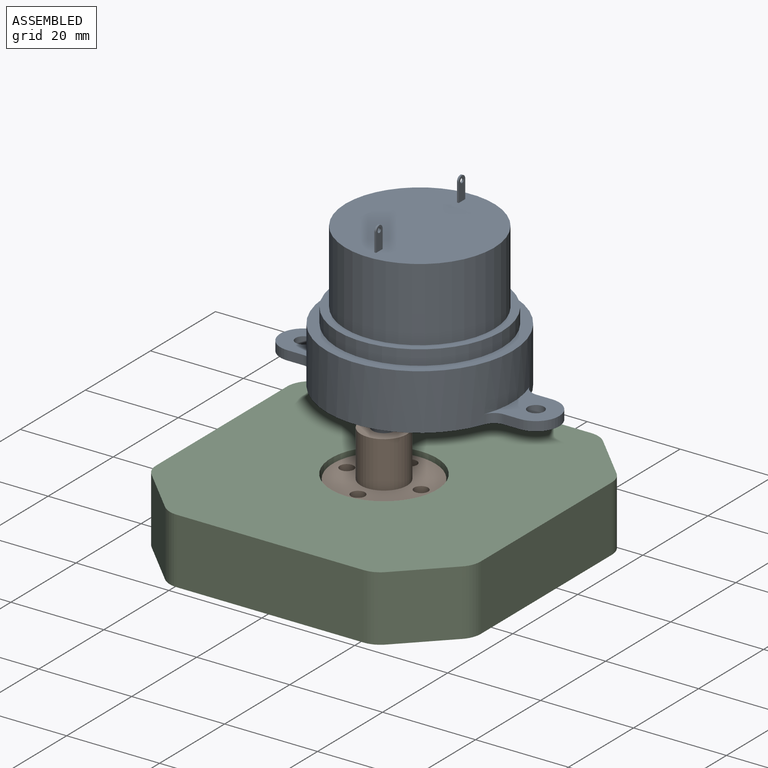
[diagram: assembled view]
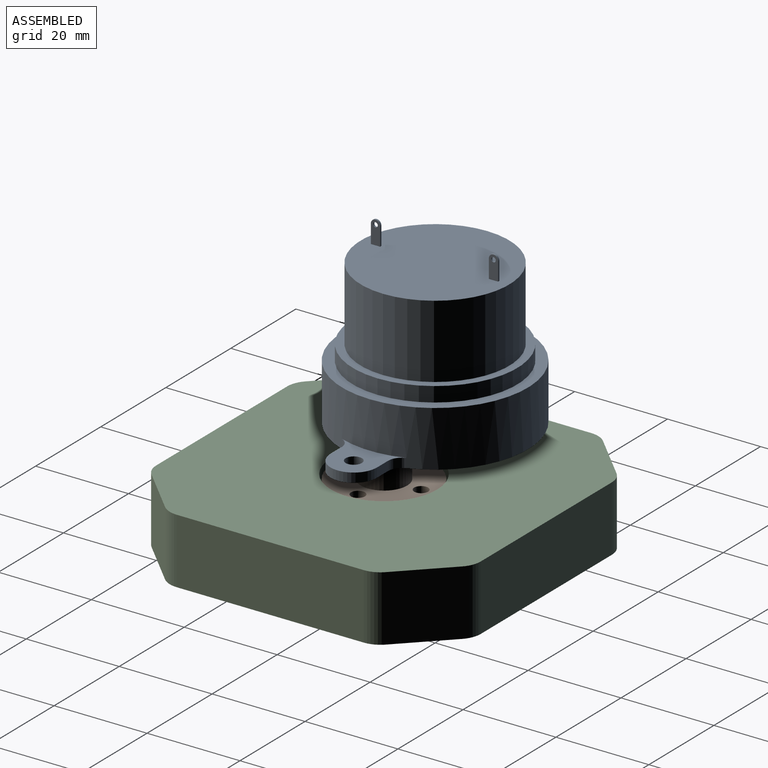
[diagram: assembled view, second angle]
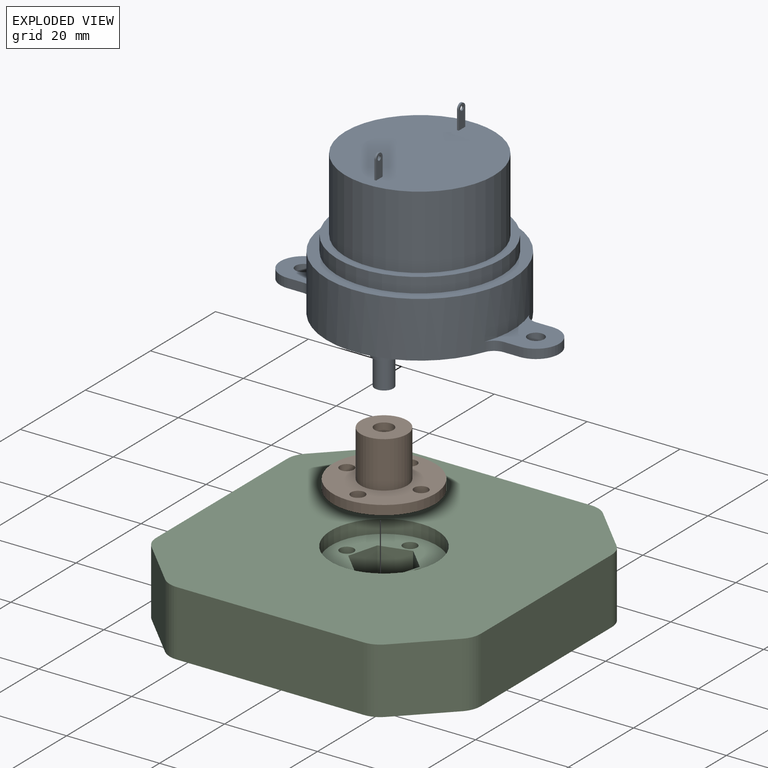
[diagram: exploded view]
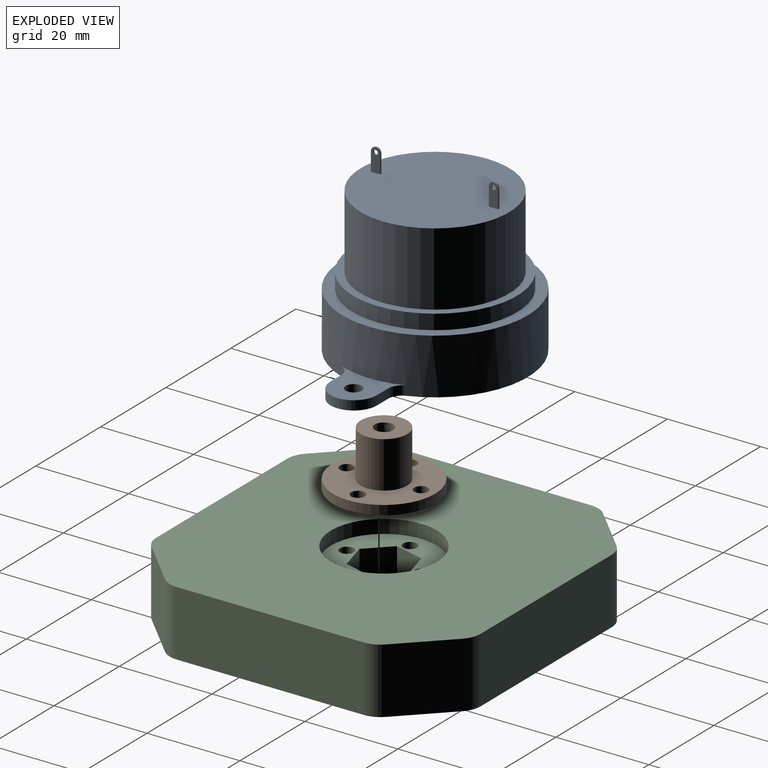
[diagram: exploded view, second angle]
ASSEMBLY  parts=3 mates=4
PART A: 39 faces, bbox 60x40x46 mm
  f0: plane 32x32mm, normal (0,0,1), area 802.7mm2, adj f20,f28,f30,f31,f32,f34,f36,f37
  f1: cylinder r=20mm len=40mm, axis (0,0,-1), area 1451.1mm2, adj f2,f3,f8,f13,f14,f15,f16,f17
  f2: plane 40x40mm, normal (0,0,1), area 272.4mm2, adj f1,f18
  f3: plane 60x40mm, normal (0,0,-1), area 1373.3mm2, adj f1,f4,f5,f6,f7,f9,f10,f11
  f4: plane 3.44x2mm, normal (0,1,0), area 6.9mm2, adj f3,f5,f8,f16
  f5: cylinder r=5mm len=10mm, axis (0,0,-1), area 31.4mm2, adj f3,f4,f6,f8
  f6: plane 3.44x2mm, normal (0,-1,0), area 6.9mm2, adj f3,f5,f8,f17
  f7: cylinder r=1.75mm len=3.5mm, axis (0,0,-1), area 22mm2, adj f3,f8
  f8: plane 13.91x11.25mm, normal (0,0,1), area 83.5mm2, adj f1,f4,f5,f6,f7,f16,f17
  f9: cylinder r=5mm len=10mm, axis (0,0,-1), area 31.4mm2, adj f3,f10,f12,f13
  f10: plane 3.44x2mm, normal (0,1,0), area 6.9mm2, adj f3,f9,f13,f14
  f11: cylinder r=1.75mm len=3.5mm, axis (0,0,-1), area 22mm2, adj f3,f13
  f12: plane 3.44x2mm, normal (0,-1,0), area 6.9mm2, adj f3,f9,f13,f15
  f13: plane 13.91x11.25mm, normal (0,0,1), area 83.5mm2, adj f1,f9,f10,f11,f12,f14,f15
  f14: cylinder r=3mm len=2.81mm, axis (0,0,-1), area 7.3mm2, adj f1,f3,f10,f13
  f15: cylinder r=3mm len=2.81mm, axis (0,0,-1), area 7.3mm2, adj f1,f3,f12,f13
  f16: cylinder r=3mm len=2.81mm, axis (0,0,-1), area 7.3mm2, adj f1,f3,f4,f8
  f17: cylinder r=3mm len=2.81mm, axis (0,0,-1), area 7.3mm2, adj f1,f3,f6,f8
  f18: cylinder r=17.7mm len=35.4mm, axis (0,0,-1), area 355.9mm2, adj f2,f19
  f19: plane 35.4x35.4mm, normal (0,0,1), area 180mm2, adj f18,f20
  f20: cylinder r=16mm len=32mm, axis (0,0,-1), area 1588.4mm2, adj f0,f19
  f21: cylinder r=4mm len=8mm, axis (0,0,1), area 50.3mm2, adj f3,f22
  f22: plane 8x8mm, normal (0,0,-1), area 30.6mm2, adj f21,f26
  f23: plane 4x4mm, normal (0,0,-1), area 12.6mm2, adj f24
  f24: cylinder r=2mm len=6mm, axis (0,0,1), area 75.4mm2, adj f23,f25
  f25: plane 5x5mm, normal (0,0,-1), area 7.1mm2, adj f24,f26
  f26: cylinder r=2.5mm len=5mm, axis (0,0,1), area 31.4mm2, adj f22,f25
  f27: cylinder r=1mm len=2mm, axis (-1,0,0), area 1.2mm2, adj f28,f30,f31,f32
  f28: plane 4x0.38mm, normal (0,-1,0), area 1.5mm2, adj f0,f27,f31,f32
  f29: cylinder r=0.5mm len=1mm, axis (-1,0,0), area 1.2mm2, adj f31,f32
  f30: plane 4x0.38mm, normal (0,1,0), area 1.5mm2, adj f0,f27,f31,f32
  f31: plane 5x2mm, normal (1,0,0), area 8.8mm2, adj f0,f27,f28,f29,f30
  f32: plane 5x2mm, normal (-1,0,0), area 8.8mm2, adj f0,f27,f28,f29,f30
  f33: cylinder r=1mm len=2mm, axis (-1,0,0), area 1.2mm2, adj f34,f36,f37,f38
  f34: plane 4x0.38mm, normal (0,-1,0), area 1.5mm2, adj f0,f33,f37,f38
  f35: cylinder r=0.5mm len=1mm, axis (-1,0,0), area 1.2mm2, adj f37,f38
  f36: plane 4x0.38mm, normal (0,1,0), area 1.5mm2, adj f0,f33,f37,f38
  f37: plane 5x2mm, normal (1,0,0), area 8.8mm2, adj f0,f33,f34,f35,f36
  f38: plane 5x2mm, normal (-1,0,0), area 8.8mm2, adj f0,f33,f34,f35,f36
PART B: 11 faces, bbox 22x22x12 mm
  f0: cylinder r=2mm len=12mm, axis (0,0,-1), area 143.1mm2, adj f2,f3,f10
  f1: cylinder r=5mm len=10mm, axis (0,0,-1), area 307mm2, adj f2,f9,f10
  f2: plane 10x10mm, normal (0,0,1), area 66mm2, adj f0,f1
  f3: plane 22x22mm, normal (0,0,-1), area 339.3mm2, adj f0,f4,f5,f6,f7,f8
  f4: cylinder r=1.5mm len=3mm, axis (0,0,-1), area 18.8mm2, adj f3,f9
  f5: cylinder r=1.5mm len=3mm, axis (0,0,-1), area 18.8mm2, adj f3,f9
  f6: cylinder r=1.5mm len=3mm, axis (0,0,-1), area 18.8mm2, adj f3,f9
  f7: cylinder r=1.5mm len=3mm, axis (0,0,-1), area 18.8mm2, adj f3,f9
  f8: cylinder r=11mm len=22mm, axis (0,0,-1), area 138.2mm2, adj f3,f9
  f9: plane 22x22mm, normal (0,0,1), area 273.3mm2, adj f1,f4,f5,f6,f7,f8
  f10: cylinder r=1.5mm len=3.68mm, axis (1,0,0), area 30.2mm2, adj f0,f1
PART C: 42 faces, bbox 69.9x69.9x14.1 mm
  f0: cylinder r=3.17mm len=6.35mm, axis (0,0,1), area 101.3mm2, adj f9,f33
  f1: cylinder r=1.5mm len=7.11mm, axis (0,0,1), area 67mm2, adj f14,f22
  f2: cylinder r=1.5mm len=7.11mm, axis (0,0,1), area 67mm2, adj f14,f20
  f3: cylinder r=1.5mm len=7.11mm, axis (0,0,1), area 67mm2, adj f14,f18
  f4: cylinder r=1.5mm len=7.11mm, axis (0,0,1), area 67mm2, adj f14,f16
  f5: plane 40.24x14.1mm, normal (0,1,0), area 567.3mm2, adj f9,f10,f38,f39
  f6: plane 40.24x14.1mm, normal (-1,0,0), area 567.3mm2, adj f9,f10,f34,f35
  f7: plane 40.24x14.1mm, normal (0,-1,0), area 567.3mm2, adj f9,f10,f36,f37
  f8: plane 40.24x14.1mm, normal (1,0,0), area 567.3mm2, adj f9,f10,f40,f41
  f9: plane 69.85x69.85mm, normal (0,0,-1), area 4377.2mm2, adj f0,f5,f6,f7,f8,f11,f15,f17
  f10: plane 69.85x69.85mm, normal (0,0,1), area 4141.6mm2, adj f5,f6,f7,f8,f13,f23,f24,f25
  f11: cylinder r=2.29mm len=5.59mm, axis (0,0,-1), area 80.3mm2, adj f9,f12
  f12: plane 4.57x4.57mm, normal (0,0,-1), area 16.4mm2, adj f11
  f13: cylinder r=11.43mm len=22.86mm, axis (0,0,1), area 209.8mm2, adj f10,f14
  f14: plane 22.86x22.86mm, normal (0,0,1), area 265mm2, adj f1,f2,f3,f4,f13,f27,f28,f29
  f15: cylinder r=3.17mm len=6.35mm, axis (0,0,-1), area 81.1mm2, adj f9,f16
  f16: plane 6.35x6.35mm, normal (0,0,-1), area 24.6mm2, adj f4,f15
  f17: cylinder r=3.17mm len=6.35mm, axis (0,0,-1), area 81.1mm2, adj f9,f18
  f18: plane 6.35x6.35mm, normal (0,0,-1), area 24.6mm2, adj f3,f17
  f19: cylinder r=3.17mm len=6.35mm, axis (0,0,-1), area 81.1mm2, adj f9,f20
  f20: plane 6.35x6.35mm, normal (0,0,-1), area 24.6mm2, adj f2,f19
  f21: cylinder r=3.17mm len=6.35mm, axis (0,0,-1), area 81.1mm2, adj f9,f22
  f22: plane 6.35x6.35mm, normal (0,0,-1), area 24.6mm2, adj f1,f21
  f23: plane 14.1x9.72mm, normal (0.71,0.71,0), area 193.9mm2, adj f9,f10,f38,f40
  f24: plane 14.1x9.72mm, normal (0.71,-0.71,0), area 193.9mm2, adj f9,f10,f36,f41
  f25: plane 14.1x9.72mm, normal (-0.71,-0.71,0), area 193.9mm2, adj f9,f10,f34,f37
  f26: plane 14.1x9.72mm, normal (-0.71,0.71,0), area 193.9mm2, adj f9,f10,f35,f39
  f27: plane 6.1x4.75mm, normal (-0.71,0.71,0), area 40.9mm2, adj f14,f28,f32,f33
  f28: plane 6.49x6.1mm, normal (-0.97,-0.26,0), area 40.9mm2, adj f14,f27,f29,f33
  f29: plane 6.49x6.1mm, normal (-0.26,-0.97,0), area 40.9mm2, adj f14,f28,f30,f33
  f30: plane 6.1x4.75mm, normal (0.71,-0.71,0), area 40.9mm2, adj f14,f29,f31,f33
  f31: plane 6.49x6.1mm, normal (0.97,0.26,0), area 40.9mm2, adj f14,f30,f32,f33
  f32: plane 6.49x6.1mm, normal (0.26,0.97,0), area 40.9mm2, adj f14,f27,f31,f33
  f33: plane 12.98x12.98mm, normal (0,0,1), area 85.5mm2, adj f0,f27,f28,f29,f30,f31,f32
  f34: cylinder r=5.08mm len=14.1mm, axis (0,0,-1), area 56.2mm2, adj f6,f9,f10,f25
  f35: cylinder r=5.08mm len=14.1mm, axis (0,0,-1), area 56.2mm2, adj f6,f9,f10,f26
  f36: cylinder r=5.08mm len=14.1mm, axis (0,0,1), area 56.2mm2, adj f7,f9,f10,f24
  f37: cylinder r=5.08mm len=14.1mm, axis (0,0,1), area 56.2mm2, adj f7,f9,f10,f25
  f38: cylinder r=5.08mm len=14.1mm, axis (0,0,-1), area 56.2mm2, adj f5,f9,f10,f23
  f39: cylinder r=5.08mm len=14.1mm, axis (0,0,-1), area 56.2mm2, adj f5,f9,f10,f26
  f40: cylinder r=5.08mm len=14.1mm, axis (0,0,1), area 56.2mm2, adj f8,f9,f10,f23
  f41: cylinder r=5.08mm len=14.1mm, axis (0,0,1), area 56.2mm2, adj f8,f9,f10,f24
PLACE A at identity
PLACE B t=(0,-11,-16)mm
PLACE C rot(axis=(0,0,1),90deg) t=(0,-11,-14.48)mm fixed
MATE planar C.f13 <-> B.f8  axis (0,0,1) through (0,-11,-16)mm
MATE cylindrical B.f8 <-> C.f13  axis (0,0,-1) through (0,-11,-15)mm
MATE planar B.f1 <-> A.f21  axis (0,0,1) through (0,-11,-4)mm
MATE cylindrical B.f0 <-> A.f21  axis (0,0,1) through (0,-11,-4)mm
